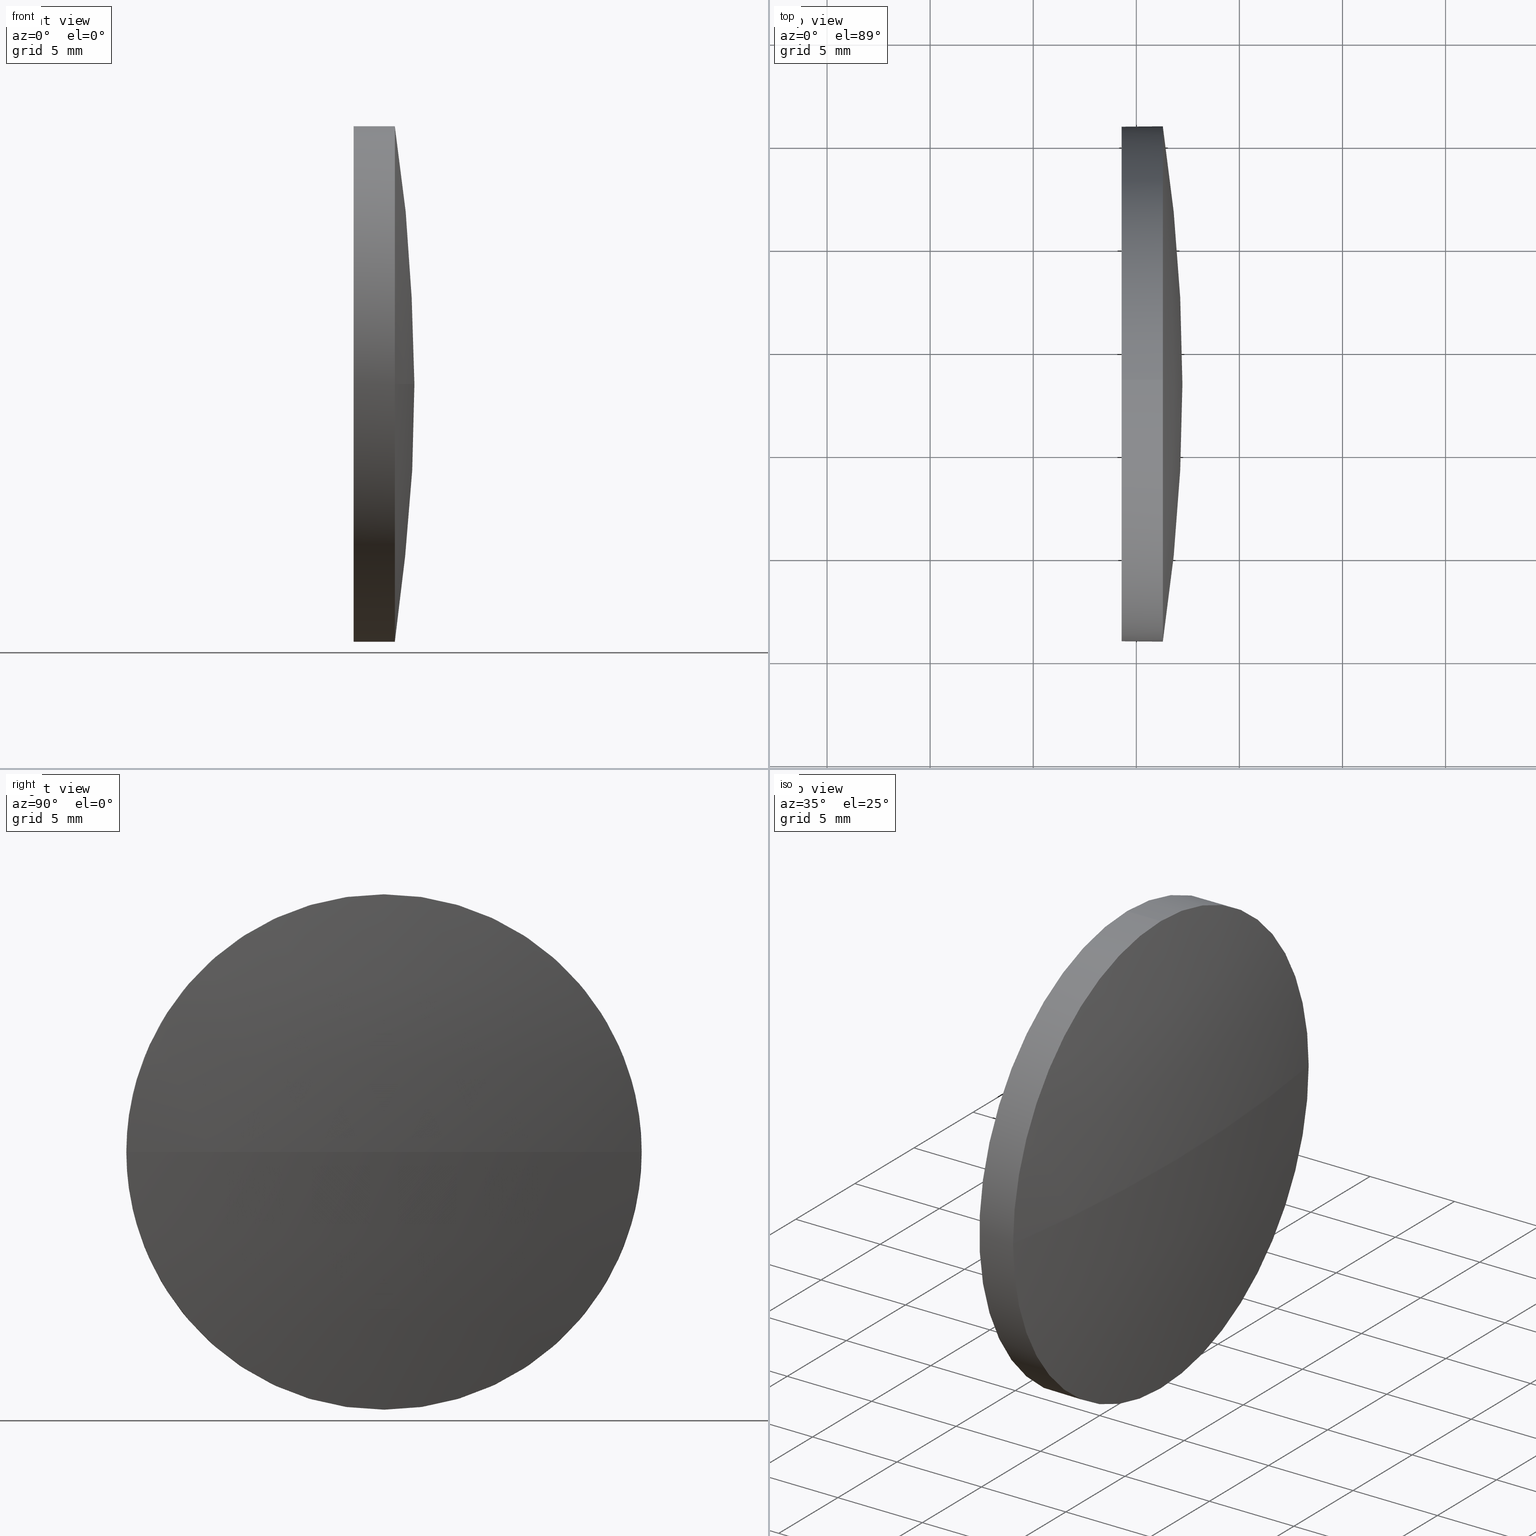
[diagram: canonical four-view strip — front | top / right | iso, engineering-drawing reading convention]
A machine part, canonical four-view strip (front | top / right | iso — engineering-drawing reading convention). The complete STEP part file that produces these views, byte-faithful:
ISO-10303-21;
HEADER;
FILE_DESCRIPTION (( 'STEP AP214' ),
    '1' );
FILE_NAME ('100218.STEP',
    '2019-05-24T01:30:07',
    ( '' ),
    ( '' ),
    'SwSTEP 2.0',
    'SolidWorks 2016',
    '' );
FILE_SCHEMA (( 'AUTOMOTIVE_DESIGN' ));
ENDSEC;

DATA;
#1 = AXIS2_PLACEMENT_3D ( 'NONE', #116, #34, #56 ) ;
#2 = DIRECTION ( 'NONE',  ( -1.000000000000000000, -0.0000000000000000000, -0.0000000000000000000 ) ) ;
#3 = ORIENTED_EDGE ( 'NONE', *, *, #123, .F. ) ;
#4 = UNCERTAINTY_MEASURE_WITH_UNIT (LENGTH_MEASURE( 1.000000000000000100E-005 ), #98, 'distance_accuracy_value', 'NONE');
#5 = DIRECTION ( 'NONE',  ( 0.0000000000000000000, -1.224646799147353200E-016, 1.000000000000000000 ) ) ;
#6 = FILL_AREA_STYLE_COLOUR ( '', #113 ) ;
#7 = DIRECTION ( 'NONE',  ( 0.0000000000000000000, 0.0000000000000000000, -1.000000000000000000 ) ) ;
#8 = UNCERTAINTY_MEASURE_WITH_UNIT (LENGTH_MEASURE( 1.000000000000000100E-005 ), #176, 'distance_accuracy_value', 'NONE');
#9 = EDGE_LOOP ( 'NONE', ( #135, #13, #65, #50, #102 ) ) ;
#10 = FACE_OUTER_BOUND ( 'NONE', #40, .T. ) ;
#11 = EDGE_CURVE ( 'NONE', #112, #133, #66, .T. ) ;
#12 = AXIS2_PLACEMENT_3D ( 'NONE', #84, #26, #41 ) ;
#13 = ORIENTED_EDGE ( 'NONE', *, *, #11, .T. ) ;
#14 = CARTESIAN_POINT ( 'NONE',  ( 481.2856830455023700, 90.84035694524031600, 1.530808498934187800E-015 ) ) ;
#15 = VERTEX_POINT ( 'NONE', #125 ) ;
#16 = DIRECTION ( 'NONE',  ( -1.000000000000000000, -0.0000000000000000000, -0.0000000000000000000 ) ) ;
#17 = DIRECTION ( 'NONE',  ( -1.000000000000000000, -0.0000000000000000000, -0.0000000000000000000 ) ) ;
#18 = APPLICATION_CONTEXT ( 'automotive_design' ) ;
#19 =( NAMED_UNIT ( * ) SI_UNIT ( $, .STERADIAN. ) SOLID_ANGLE_UNIT ( ) );
#20 = DIRECTION ( 'NONE',  ( 0.0000000000000000000, 0.0000000000000000000, 1.000000000000000000 ) ) ;
#21 = CARTESIAN_POINT ( 'NONE',  ( 399.5238409402394400, 78.34035694524033000, 0.0000000000000000000 ) ) ;
#22 = PRODUCT ( '100218', '100218', '', ( #174 ) ) ;
#23 = AXIS2_PLACEMENT_3D ( 'NONE', #160, #107, #136 ) ;
#24 = CIRCLE ( 'NONE', #177, 12.49999999999999600 ) ;
#25 = CIRCLE ( 'NONE', #64, 12.49999999999999600 ) ;
#26 = DIRECTION ( 'NONE',  ( -1.000000000000000000, -0.0000000000000000000, -0.0000000000000000000 ) ) ;
#27 = CARTESIAN_POINT ( 'NONE',  ( 399.5238409402394400, 78.34035694524033000, 0.0000000000000000000 ) ) ;
#28 = DIRECTION ( 'NONE',  ( 0.0000000000000000000, 0.0000000000000000000, 1.000000000000000000 ) ) ;
#29 = APPLICATION_CONTEXT ( 'automotive_design' ) ;
#30 = DIRECTION ( 'NONE',  ( 0.0000000000000000000, 0.0000000000000000000, 1.000000000000000000 ) ) ;
#31 = DIRECTION ( 'NONE',  ( -1.000000000000000000, -0.0000000000000000000, -0.0000000000000000000 ) ) ;
#32 = SHAPE_DEFINITION_REPRESENTATION ( #57, #181 ) ;
#33 = SURFACE_SIDE_STYLE ('',( #169 ) ) ;
#34 = DIRECTION ( 'NONE',  ( -1.000000000000000000, -0.0000000000000000000, -0.0000000000000000000 ) ) ;
#35 = CLOSED_SHELL ( 'NONE', ( #103, #49, #36, #182, #118 ) ) ;
#36 = ADVANCED_FACE ( 'NONE', ( #10 ), #141, .T. ) ;
#37 = EDGE_CURVE ( 'NONE', #133, #82, #153, .T. ) ;
#38 = ORIENTED_EDGE ( 'NONE', *, *, #37, .F. ) ;
#39 = PRODUCT_DEFINITION_FORMATION_WITH_SPECIFIED_SOURCE ( '�κ�', '', #22, .NOT_KNOWN. ) ;
#40 = EDGE_LOOP ( 'NONE', ( #83, #164, #180, #157 ) ) ;
#41 = DIRECTION ( 'NONE',  ( 0.0000000000000000000, 0.0000000000000000000, 1.000000000000000000 ) ) ;
#42 = FACE_OUTER_BOUND ( 'NONE', #184, .T. ) ;
#43 = CARTESIAN_POINT ( 'NONE',  ( 399.5238409402394400, 78.34035694524033000, 0.0000000000000000000 ) ) ;
#44 = CARTESIAN_POINT ( 'NONE',  ( 481.2856830455023700, 78.34035694524027300, 0.0000000000000000000 ) ) ;
#45 = DIRECTION ( 'NONE',  ( -1.000000000000000000, -0.0000000000000000000, -0.0000000000000000000 ) ) ;
#46 = VERTEX_POINT ( 'NONE', #170 ) ;
#47 = AXIS2_PLACEMENT_3D ( 'NONE', #27, #55, #126 ) ;
#48 = PRODUCT_RELATED_PRODUCT_CATEGORY ( 'part', '', ( #22 ) ) ;
#49 = ADVANCED_FACE ( 'NONE', ( #42 ), #131, .T. ) ;
#50 = ORIENTED_EDGE ( 'NONE', *, *, #186, .F. ) ;
#51 = PRESENTATION_STYLE_ASSIGNMENT (( #88 ) ) ;
#52 = CARTESIAN_POINT ( 'NONE',  ( 479.2856830455023700, 78.34035694524027300, -12.49999999999999600 ) ) ;
#53 = CARTESIAN_POINT ( 'NONE',  ( 479.2856830455023700, 78.34035694524027300, 0.0000000000000000000 ) ) ;
#54 = CARTESIAN_POINT ( 'NONE',  ( 479.2856830455023700, 78.34035694524027300, 12.49999999999999600 ) ) ;
#55 = DIRECTION ( 'NONE',  ( 0.0000000000000000000, 0.0000000000000000000, 1.000000000000000000 ) ) ;
#56 = DIRECTION ( 'NONE',  ( 0.0000000000000000000, 0.0000000000000000000, 1.000000000000000000 ) ) ;
#57 = PRODUCT_DEFINITION_SHAPE ( 'NONE', 'NONE',  #96 ) ;
#58 = DIRECTION ( 'NONE',  ( -1.000000000000000000, -0.0000000000000000000, -0.0000000000000000000 ) ) ;
#59 =( NAMED_UNIT ( * ) SI_UNIT ( $, .STERADIAN. ) SOLID_ANGLE_UNIT ( ) );
#60 = SURFACE_SIDE_STYLE ('',( #154 ) ) ;
#61 = CIRCLE ( 'NONE', #12, 12.49999999999999600 ) ;
#62 = UNCERTAINTY_MEASURE_WITH_UNIT (LENGTH_MEASURE( 1.000000000000000100E-005 ), #76, 'distance_accuracy_value', 'NONE');
#63 = FACE_OUTER_BOUND ( 'NONE', #9, .T. ) ;
#64 = AXIS2_PLACEMENT_3D ( 'NONE', #99, #58, #97 ) ;
#65 = ORIENTED_EDGE ( 'NONE', *, *, #134, .F. ) ;
#66 = LINE ( 'NONE', #185, #106 ) ;
#67 = STYLED_ITEM ( 'NONE', ( #51 ), #181 ) ;
#68 = CARTESIAN_POINT ( 'NONE',  ( 481.2856830455023700, 78.34035694524027300, 0.0000000000000000000 ) ) ;
#69 = DIRECTION ( 'NONE',  ( 0.0000000000000000000, 0.0000000000000000000, 1.000000000000000000 ) ) ;
#70 = ORIENTED_EDGE ( 'NONE', *, *, #94, .T. ) ;
#71 = ORIENTED_EDGE ( 'NONE', *, *, #186, .T. ) ;
#72 = DIRECTION ( 'NONE',  ( 1.000000000000000000, 0.0000000000000000000, 0.0000000000000000000 ) ) ;
#73 = CIRCLE ( 'NONE', #121, 12.49999999999999600 ) ;
#74 = CARTESIAN_POINT ( 'NONE',  ( 481.2856830455023700, 78.34035694524027300, 12.49999999999999600 ) ) ;
#75 =( NAMED_UNIT ( * ) PLANE_ANGLE_UNIT ( ) SI_UNIT ( $, .RADIAN. ) );
#76 =( LENGTH_UNIT ( ) NAMED_UNIT ( * ) SI_UNIT ( .MILLI., .METRE. ) );
#77 = STYLED_ITEM ( 'NONE', ( #129 ), #166 ) ;
#78 = ORIENTED_EDGE ( 'NONE', *, *, #37, .T. ) ;
#79 = FACE_OUTER_BOUND ( 'NONE', #95, .T. ) ;
#80 = AXIS2_PLACEMENT_3D ( 'NONE', #175, #20, #115 ) ;
#81 = CIRCLE ( 'NONE', #100, 82.71184210526288900 ) ;
#82 = VERTEX_POINT ( 'NONE', #54 ) ;
#83 = ORIENTED_EDGE ( 'NONE', *, *, #94, .F. ) ;
#84 = CARTESIAN_POINT ( 'NONE',  ( 481.2856830455023700, 78.34035694524027300, 0.0000000000000000000 ) ) ;
#85 = PRESENTATION_LAYER_ASSIGNMENT (  '', '', ( #77 ) ) ;
#86 = DIRECTION ( 'NONE',  ( 0.0000000000000000000, -1.000000000000000000, 0.0000000000000000000 ) ) ;
#87 = APPLICATION_PROTOCOL_DEFINITION ( 'draft international standard', 'automotive_design', 1998, #29 ) ;
#88 = SURFACE_STYLE_USAGE ( .BOTH. , #60 ) ;
#89 = EDGE_CURVE ( 'NONE', #140, #101, #61, .T. ) ;
#90 = DIRECTION ( 'NONE',  ( 0.0000000000000000000, 0.0000000000000000000, 1.000000000000000000 ) ) ;
#91 = ORIENTED_EDGE ( 'NONE', *, *, #134, .T. ) ;
#92 = FACE_OUTER_BOUND ( 'NONE', #110, .T. ) ;
#93 =( NAMED_UNIT ( * ) PLANE_ANGLE_UNIT ( ) SI_UNIT ( $, .RADIAN. ) );
#94 = EDGE_CURVE ( 'NONE', #15, #101, #168, .T. ) ;
#95 = EDGE_LOOP ( 'NONE', ( #91, #78 ) ) ;
#96 = PRODUCT_DEFINITION ( 'δ֪', '', #39, #173 ) ;
#97 = DIRECTION ( 'NONE',  ( 0.0000000000000000000, 0.0000000000000000000, 1.000000000000000000 ) ) ;
#98 =( LENGTH_UNIT ( ) NAMED_UNIT ( * ) SI_UNIT ( .MILLI., .METRE. ) );
#99 = CARTESIAN_POINT ( 'NONE',  ( 481.2856830455023700, 78.34035694524027300, 0.0000000000000000000 ) ) ;
#100 = AXIS2_PLACEMENT_3D ( 'NONE', #21, #128, #145 ) ;
#101 = VERTEX_POINT ( 'NONE', #14 ) ;
#102 = ORIENTED_EDGE ( 'NONE', *, *, #89, .T. ) ;
#103 = ADVANCED_FACE ( 'NONE', ( #63 ), #148, .T. ) ;
#104 =( GEOMETRIC_REPRESENTATION_CONTEXT ( 3 ) GLOBAL_UNCERTAINTY_ASSIGNED_CONTEXT ( ( #62 ) ) GLOBAL_UNIT_ASSIGNED_CONTEXT ( ( #76, #144, #147 ) ) REPRESENTATION_CONTEXT ( 'NONE', 'WORKASPACE' ) );
#105 = ORIENTED_EDGE ( 'NONE', *, *, #152, .T. ) ;
#106 = VECTOR ( 'NONE', #17, 1000.000000000000000 ) ;
#107 = DIRECTION ( 'NONE',  ( -1.000000000000000000, -0.0000000000000000000, -0.0000000000000000000 ) ) ;
#108 = CARTESIAN_POINT ( 'NONE',  ( 399.5238409402394400, 78.34035694524033000, 0.0000000000000000000 ) ) ;
#109 = PLANE ( 'NONE',  #167 ) ;
#110 = EDGE_LOOP ( 'NONE', ( #120, #151, #105, #71, #38 ) ) ;
#111 = EDGE_CURVE ( 'NONE', #101, #112, #150, .T. ) ;
#112 = VERTEX_POINT ( 'NONE', #138 ) ;
#113 = COLOUR_RGB ( '',1.000000000000000000, 1.000000000000000000, 1.000000000000000000 ) ;
#114 = FILL_AREA_STYLE ('',( #127 ) ) ;
#115 = DIRECTION ( 'NONE',  ( 1.000000000000000000, 0.0000000000000000000, 0.0000000000000000000 ) ) ;
#116 = CARTESIAN_POINT ( 'NONE',  ( 477.2565754670653700, 78.34035694524027300, 0.0000000000000000000 ) ) ;
#117 = VECTOR ( 'NONE', #45, 1000.000000000000000 ) ;
#118 = ADVANCED_FACE ( 'NONE', ( #79 ), #109, .F. ) ;
#119 =( GEOMETRIC_REPRESENTATION_CONTEXT ( 3 ) GLOBAL_UNCERTAINTY_ASSIGNED_CONTEXT ( ( #4 ) ) GLOBAL_UNIT_ASSIGNED_CONTEXT ( ( #98, #93, #19 ) ) REPRESENTATION_CONTEXT ( 'NONE', 'WORKASPACE' ) );
#120 = ORIENTED_EDGE ( 'NONE', *, *, #11, .F. ) ;
#121 = AXIS2_PLACEMENT_3D ( 'NONE', #44, #179, #90 ) ;
#122 = CYLINDRICAL_SURFACE ( 'NONE', #1, 12.49999999999999600 ) ;
#123 = EDGE_CURVE ( 'NONE', #15, #46, #81, .T. ) ;
#124 = MECHANICAL_DESIGN_GEOMETRIC_PRESENTATION_REPRESENTATION (  '', ( #67 ), #119 ) ;
#125 = CARTESIAN_POINT ( 'NONE',  ( 482.2356830455023600, 78.34035694524033000, 0.0000000000000000000 ) ) ;
#126 = DIRECTION ( 'NONE',  ( 0.0000000000000000000, -1.000000000000000000, 0.0000000000000000000 ) ) ;
#127 = FILL_AREA_STYLE_COLOUR ( '', #158 ) ;
#128 = DIRECTION ( 'NONE',  ( 0.0000000000000000000, 0.0000000000000000000, -1.000000000000000000 ) ) ;
#129 = PRESENTATION_STYLE_ASSIGNMENT (( #163 ) ) ;
#130 = APPLICATION_PROTOCOL_DEFINITION ( 'draft international standard', 'automotive_design', 1998, #18 ) ;
#131 = SPHERICAL_SURFACE ( 'NONE', #47, 82.71184210526288900 ) ;
#132 = MECHANICAL_DESIGN_GEOMETRIC_PRESENTATION_REPRESENTATION (  '', ( #77 ), #139 ) ;
#133 = VERTEX_POINT ( 'NONE', #52 ) ;
#134 = EDGE_CURVE ( 'NONE', #82, #133, #24, .T. ) ;
#135 = ORIENTED_EDGE ( 'NONE', *, *, #111, .T. ) ;
#136 = DIRECTION ( 'NONE',  ( 0.0000000000000000000, 0.0000000000000000000, 1.000000000000000000 ) ) ;
#137 = DIRECTION ( 'NONE',  ( 0.0000000000000000000, -1.000000000000000000, -1.224646799147353200E-016 ) ) ;
#138 = CARTESIAN_POINT ( 'NONE',  ( 481.2856830455023700, 78.34035694524027300, -12.49999999999999600 ) ) ;
#139 =( GEOMETRIC_REPRESENTATION_CONTEXT ( 3 ) GLOBAL_UNCERTAINTY_ASSIGNED_CONTEXT ( ( #8 ) ) GLOBAL_UNIT_ASSIGNED_CONTEXT ( ( #176, #75, #59 ) ) REPRESENTATION_CONTEXT ( 'NONE', 'WORKASPACE' ) );
#140 = VERTEX_POINT ( 'NONE', #74 ) ;
#141 = SPHERICAL_SURFACE ( 'NONE', #171, 82.71184210526288900 ) ;
#142 = CARTESIAN_POINT ( 'NONE',  ( 479.2856830455023700, 78.34035694524027300, 0.0000000000000000000 ) ) ;
#143 = FILL_AREA_STYLE ('',( #6 ) ) ;
#144 =( NAMED_UNIT ( * ) PLANE_ANGLE_UNIT ( ) SI_UNIT ( $, .RADIAN. ) );
#145 = DIRECTION ( 'NONE',  ( -1.000000000000000000, 0.0000000000000000000, 0.0000000000000000000 ) ) ;
#146 = AXIS2_PLACEMENT_3D ( 'NONE', #68, #16, #69 ) ;
#147 =( NAMED_UNIT ( * ) SI_UNIT ( $, .STERADIAN. ) SOLID_ANGLE_UNIT ( ) );
#148 = CYLINDRICAL_SURFACE ( 'NONE', #23, 12.49999999999999600 ) ;
#149 = ORIENTED_EDGE ( 'NONE', *, *, #89, .F. ) ;
#150 = CIRCLE ( 'NONE', #146, 12.49999999999999600 ) ;
#151 = ORIENTED_EDGE ( 'NONE', *, *, #165, .T. ) ;
#152 = EDGE_CURVE ( 'NONE', #46, #140, #73, .T. ) ;
#153 = CIRCLE ( 'NONE', #183, 12.49999999999999600 ) ;
#154 = SURFACE_STYLE_FILL_AREA ( #143 ) ;
#155 = AXIS2_PLACEMENT_3D ( 'NONE', #108, #5, #137 ) ;
#156 = DIRECTION ( 'NONE',  ( 0.0000000000000000000, 0.0000000000000000000, 1.000000000000000000 ) ) ;
#157 = ORIENTED_EDGE ( 'NONE', *, *, #111, .F. ) ;
#158 = COLOUR_RGB ( '',1.000000000000000000, 1.000000000000000000, 1.000000000000000000 ) ;
#159 = LINE ( 'NONE', #162, #117 ) ;
#160 = CARTESIAN_POINT ( 'NONE',  ( 477.2565754670653700, 78.34035694524027300, 0.0000000000000000000 ) ) ;
#161 = CARTESIAN_POINT ( 'NONE',  ( 479.2856830455023700, 78.34035694524027300, 0.0000000000000000000 ) ) ;
#162 = CARTESIAN_POINT ( 'NONE',  ( 477.2565754670653700, 78.34035694524027300, 12.49999999999999600 ) ) ;
#163 = SURFACE_STYLE_USAGE ( .BOTH. , #33 ) ;
#164 = ORIENTED_EDGE ( 'NONE', *, *, #123, .T. ) ;
#165 = EDGE_CURVE ( 'NONE', #112, #46, #25, .T. ) ;
#166 = MANIFOLD_SOLID_BREP ( '��ת1', #35 ) ;
#167 = AXIS2_PLACEMENT_3D ( 'NONE', #53, #72, #7 ) ;
#168 = CIRCLE ( 'NONE', #155, 82.71184210526288900 ) ;
#169 = SURFACE_STYLE_FILL_AREA ( #114 ) ;
#170 = CARTESIAN_POINT ( 'NONE',  ( 481.2856830455023700, 65.84035694524028800, 0.0000000000000000000 ) ) ;
#171 = AXIS2_PLACEMENT_3D ( 'NONE', #43, #28, #86 ) ;
#172 = ORIENTED_EDGE ( 'NONE', *, *, #152, .F. ) ;
#173 = PRODUCT_DEFINITION_CONTEXT ( 'detailed design', #29, 'design' ) ;
#174 = PRODUCT_CONTEXT ( 'NONE', #18, 'mechanical' ) ;
#175 = CARTESIAN_POINT ( 'NONE',  ( 0.0000000000000000000, 0.0000000000000000000, 0.0000000000000000000 ) ) ;
#176 =( LENGTH_UNIT ( ) NAMED_UNIT ( * ) SI_UNIT ( .MILLI., .METRE. ) );
#177 = AXIS2_PLACEMENT_3D ( 'NONE', #161, #31, #30 ) ;
#178 = PRESENTATION_LAYER_ASSIGNMENT (  '', '', ( #67 ) ) ;
#179 = DIRECTION ( 'NONE',  ( -1.000000000000000000, -0.0000000000000000000, -0.0000000000000000000 ) ) ;
#180 = ORIENTED_EDGE ( 'NONE', *, *, #165, .F. ) ;
#181 = ADVANCED_BREP_SHAPE_REPRESENTATION ( '100218', ( #166, #80 ), #104 ) ;
#182 = ADVANCED_FACE ( 'NONE', ( #92 ), #122, .T. ) ;
#183 = AXIS2_PLACEMENT_3D ( 'NONE', #142, #2, #156 ) ;
#184 = EDGE_LOOP ( 'NONE', ( #3, #70, #149, #172 ) ) ;
#185 = CARTESIAN_POINT ( 'NONE',  ( 477.2565754670653700, 78.34035694524027300, -12.49999999999999600 ) ) ;
#186 = EDGE_CURVE ( 'NONE', #140, #82, #159, .T. ) ;
ENDSEC;
END-ISO-10303-21;
